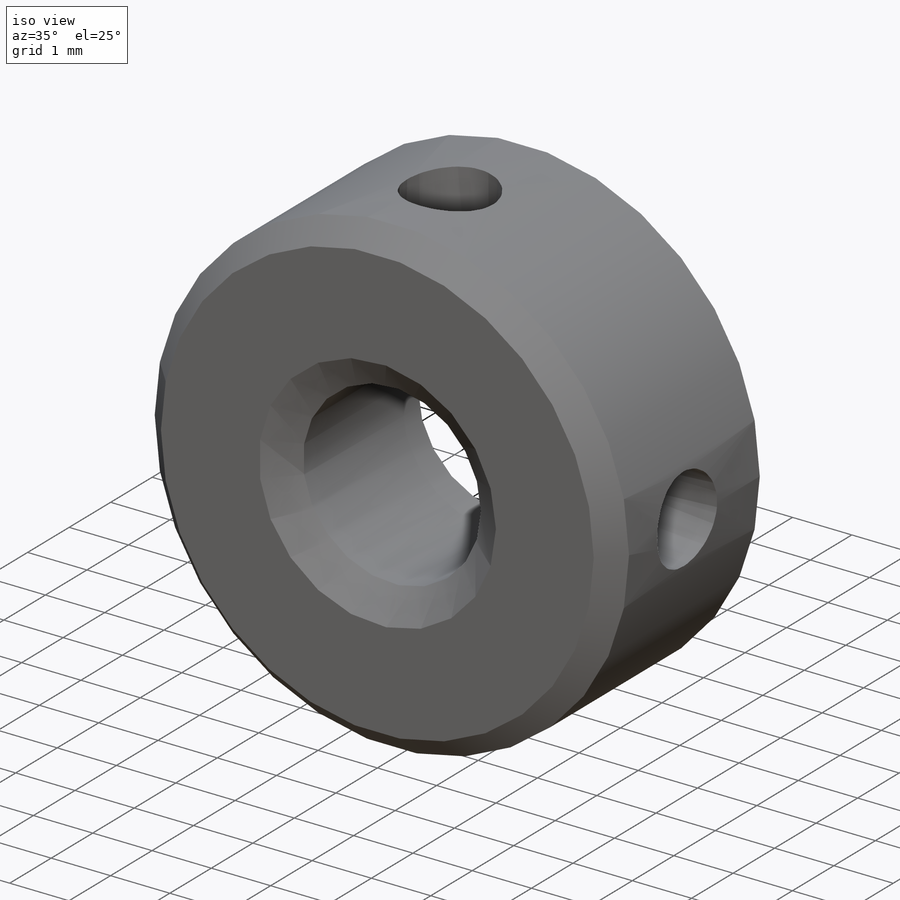
[diagram: iso view]
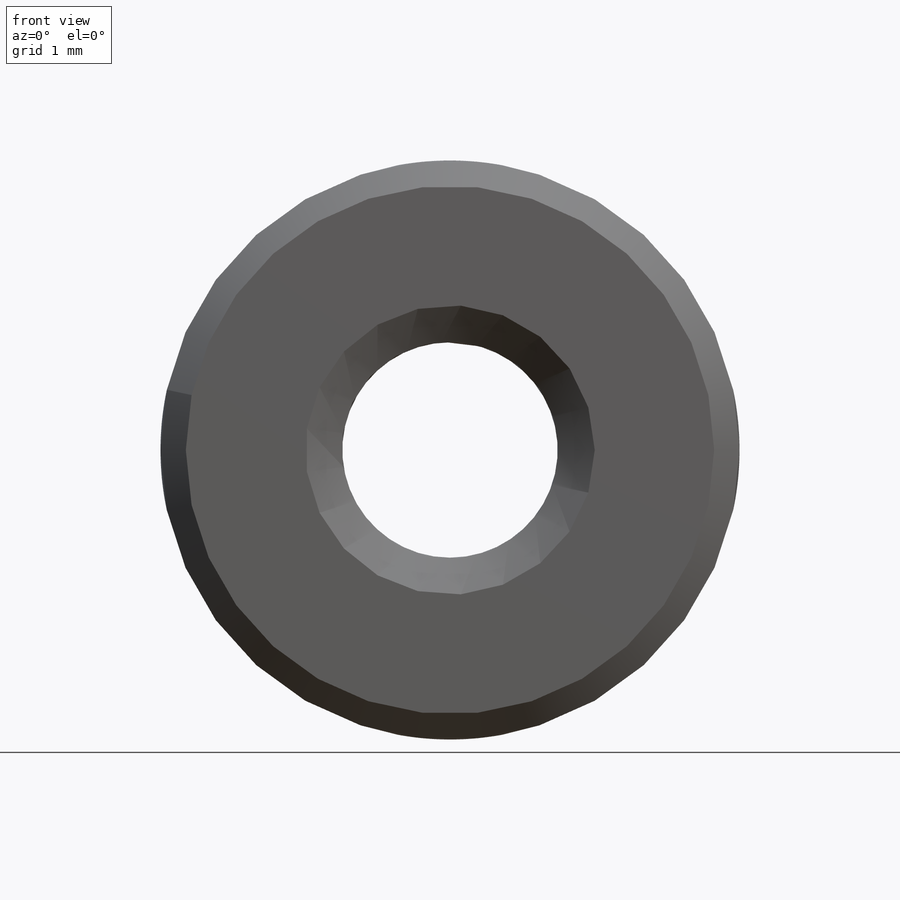
[diagram: front view]
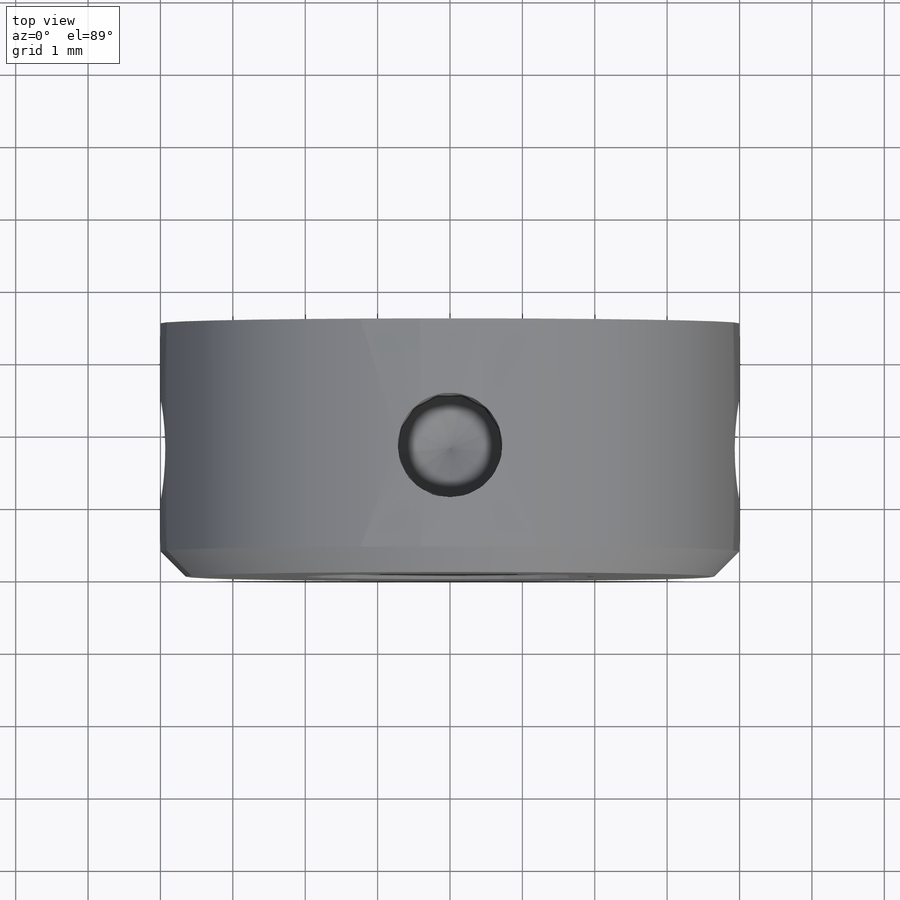
[diagram: top view]
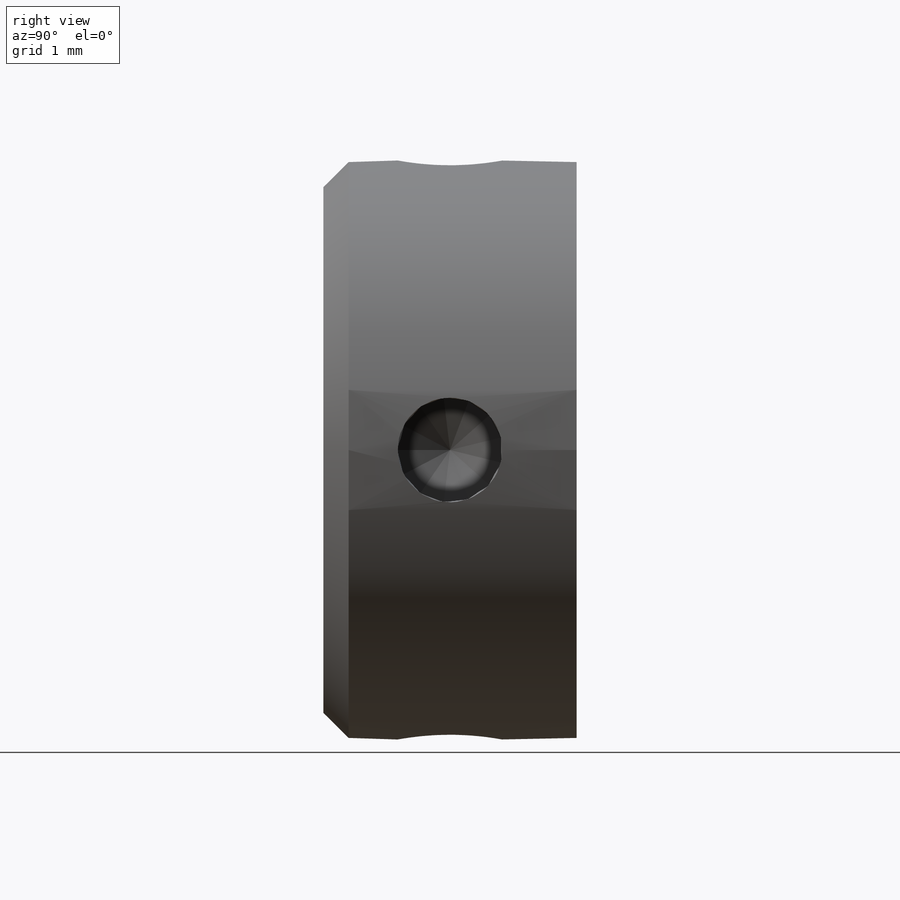
[diagram: right view]
SOLIDWORKS PART (.sldprt)
format: sldprt  version: not decoded by parser v0  size: 252,416 bytes
history: native  units: mm
features: extrude x4, pattern_circular x4, plane x3, material x1, cut_revolve x1, sketch x1, thread x1, pattern_linear x1, chamfer x1, hole x1 (+10 scaffold rows collapsed; 1 parser-record rows omitted)
feature tree (29):
  scaffold x10  (default folders/planes/origin — collapsed)
  material  "Material <not specified>"
  plane  "Plane1"
  plane  "Plane2"
  plane  "Plane3"
  parser-record x1  (decoder bookkeeping rows leaked as tree rows — omitted from the tree; the rows remain in map.json)
  cut_revolve  "EndChamfer"  [1 undecoded]
  sketch  "EndChSke"
  extrude  "BaseNut"  [1 undecoded]
  extrude  "BaseNutSke"  Depth=5mm Tap_drill=5mm Outerdia=14mm Width_flats=38.1mm
  thread  "ThreadCosmetic"  Diameter=6mm Thread_major=6mm Thickness=5mm  [1 undecoded]
  pattern_linear  "ThdSchPat"  [2 undecoded]
  extrude  "ThdSchSke"  Depth=4.490128mm VeeAngle=70deg SideAngle=55deg ThreadDepth=2.54mm Thread_Major=6.35mm OverCut=2.5mm Tap_Drill=5mm Advance=1.27mm Thread_major=6mm Num_threads=6 Offset1=25.4254mm ThreadMajor=12.7mm ChamferDepth=0.55mm Offset2=5.0762mm
  chamfer  "Chamfer1"  Distance=0.5mm Angle=45deg Chamfer_len=0.5mm
  extrude  "HoleSke"  Depth=2.5mm Hole_pos=2.5mm Hole_dia=2.5mm Hole_dep=3.2mm
  hole  "Hole"  [1 undecoded]
  pattern_circular  "Holes"  Count=4 Angle=90deg
  pattern_circular  "ConfigurationName"  CopiedFlag=0  [2 undecoded]
  pattern_circular  "PartNumberID"  [2 undecoded]
  pattern_circular  "ConfigurationName"  CopiedFlag=0  [2 undecoded]
decode coverage: 8 of 14 modeling features carry decoded parameters
note: 12 parameter values undecoded
summary: no parameter record found for 3 features
note: suppression state not decoded; provenance and decode notes live in map.json
